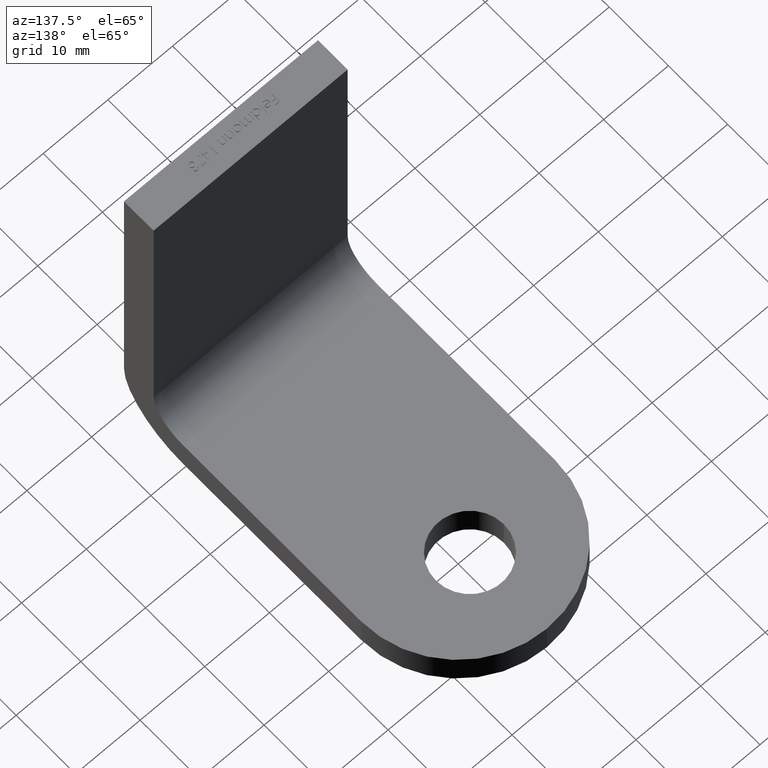
[diagram: clean part render]
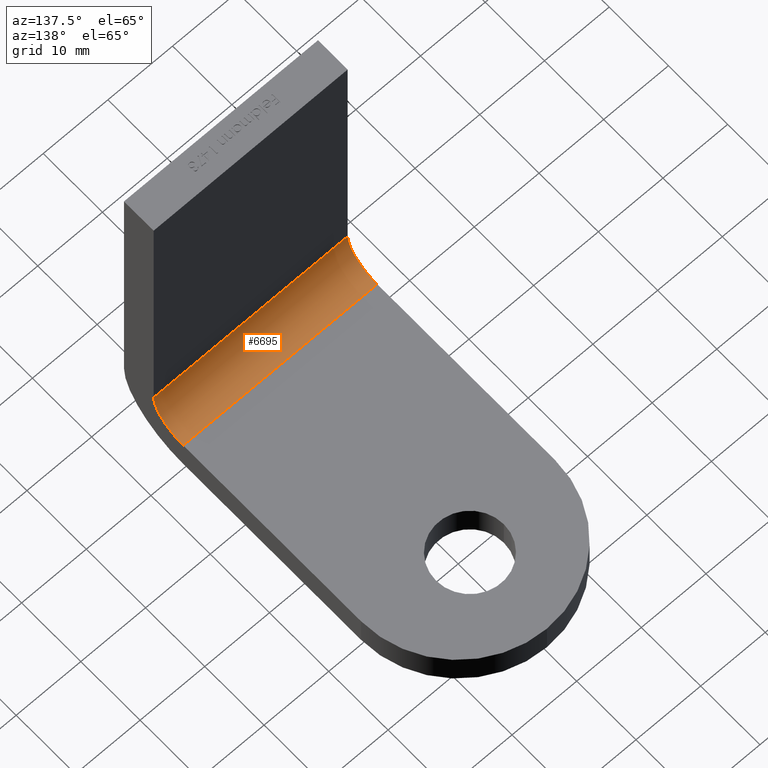
[diagram: same view with one face highlighted and labeled with its STEP entity id]
A machine part, auxiliary view. The second image highlights one B-rep face of the part: STEP entity #6695.
In plain terms, the highlighted cylindrical surface (partial cylindrical patch) has radius 5 mm, axis along (-1, -0, -0).
Its self-contained STEP definition (entity closure, byte-faithful):
#60 = CARTESIAN_POINT ( 'NONE',  ( 15.00000000000000000, 9.999999999999998200, -50.00000000000000000 ) ) ;
#270 = LINE ( 'NONE', #60, #7650 ) ;
#278 = EDGE_CURVE ( 'NONE', #3139, #1745, #270, .T. ) ;
#514 = VERTEX_POINT ( 'NONE', #2232 ) ;
#935 = ORIENTED_EDGE ( 'NONE', *, *, #7834, .F. ) ;
#1243 = ORIENTED_EDGE ( 'NONE', *, *, #8109, .F. ) ;
#1260 = DIRECTION ( 'NONE',  ( 0.0000000000000000000, 0.0000000000000000000, -1.000000000000000000 ) ) ;
#1745 = VERTEX_POINT ( 'NONE', #7065 ) ;
#2047 = EDGE_LOOP ( 'NONE', ( #6219, #935, #1243, #2781 ) ) ;
#2232 = CARTESIAN_POINT ( 'NONE',  ( 15.00000000000000000, 5.000000000000000000, -45.00000000000000000 ) ) ;
#2781 = ORIENTED_EDGE ( 'NONE', *, *, #278, .T. ) ;
#3139 = VERTEX_POINT ( 'NONE', #5170 ) ;
#3185 = CARTESIAN_POINT ( 'NONE',  ( -15.00000000000000000, 10.00000000000000000, -45.00000000000000000 ) ) ;
#3533 = EDGE_CURVE ( 'NONE', #1745, #7484, #5517, .T. ) ;
#4234 = AXIS2_PLACEMENT_3D ( 'NONE', #3185, #5161, #1260 ) ;
#4799 = CARTESIAN_POINT ( 'NONE',  ( 15.00000000000000000, 5.000000000000000000, -45.00000000000000000 ) ) ;
#5031 = VECTOR ( 'NONE', #6661, 1000.000000000000000 ) ;
#5161 = DIRECTION ( 'NONE',  ( -1.000000000000000000, 0.0000000000000000000, -0.0000000000000000000 ) ) ;
#5170 = CARTESIAN_POINT ( 'NONE',  ( 15.00000000000000000, 9.999999999999998200, -50.00000000000000000 ) ) ;
#5220 = DIRECTION ( 'NONE',  ( -1.000000000000000000, -0.0000000000000000000, -0.0000000000000000000 ) ) ;
#5236 = CIRCLE ( 'NONE', #8383, 5.000000000000004400 ) ;
#5471 = CARTESIAN_POINT ( 'NONE',  ( 15.00000000000000000, 10.00000000000000000, -45.00000000000000000 ) ) ;
#5499 = DIRECTION ( 'NONE',  ( -1.000000000000000000, 0.0000000000000000000, -0.0000000000000000000 ) ) ;
#5517 = CIRCLE ( 'NONE', #4234, 5.000000000000004400 ) ;
#6125 = CARTESIAN_POINT ( 'NONE',  ( -15.00000000000000000, 5.000000000000000000, -45.00000000000000000 ) ) ;
#6219 = ORIENTED_EDGE ( 'NONE', *, *, #3533, .T. ) ;
#6260 = LINE ( 'NONE', #4799, #5031 ) ;
#6554 = DIRECTION ( 'NONE',  ( 0.0000000000000000000, 0.0000000000000000000, 1.000000000000000000 ) ) ;
#6661 = DIRECTION ( 'NONE',  ( -1.000000000000000000, -0.0000000000000000000, -0.0000000000000000000 ) ) ;
#6695 = ADVANCED_FACE ( 'NONE', ( #8376 ), #7473, .F. ) ;
#6730 = DIRECTION ( 'NONE',  ( 0.0000000000000000000, 0.0000000000000000000, -1.000000000000000000 ) ) ;
#7065 = CARTESIAN_POINT ( 'NONE',  ( -15.00000000000000000, 9.999999999999998200, -50.00000000000000000 ) ) ;
#7098 = CARTESIAN_POINT ( 'NONE',  ( 15.00000000000000000, 10.00000000000000000, -45.00000000000000000 ) ) ;
#7301 = AXIS2_PLACEMENT_3D ( 'NONE', #7098, #5220, #6554 ) ;
#7473 = CYLINDRICAL_SURFACE ( 'NONE', #7301, 5.000000000000004400 ) ;
#7484 = VERTEX_POINT ( 'NONE', #6125 ) ;
#7650 = VECTOR ( 'NONE', #8344, 1000.000000000000000 ) ;
#7834 = EDGE_CURVE ( 'NONE', #514, #7484, #6260, .T. ) ;
#8109 = EDGE_CURVE ( 'NONE', #3139, #514, #5236, .T. ) ;
#8344 = DIRECTION ( 'NONE',  ( -1.000000000000000000, -0.0000000000000000000, -0.0000000000000000000 ) ) ;
#8376 = FACE_OUTER_BOUND ( 'NONE', #2047, .T. ) ;
#8383 = AXIS2_PLACEMENT_3D ( 'NONE', #5471, #5499, #6730 ) ;